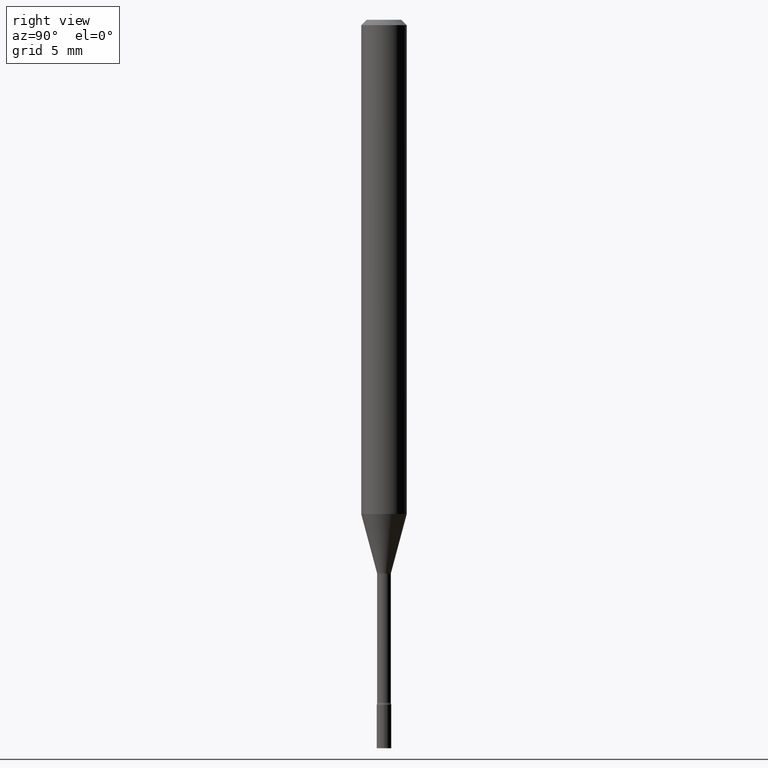
[diagram: clean part render]
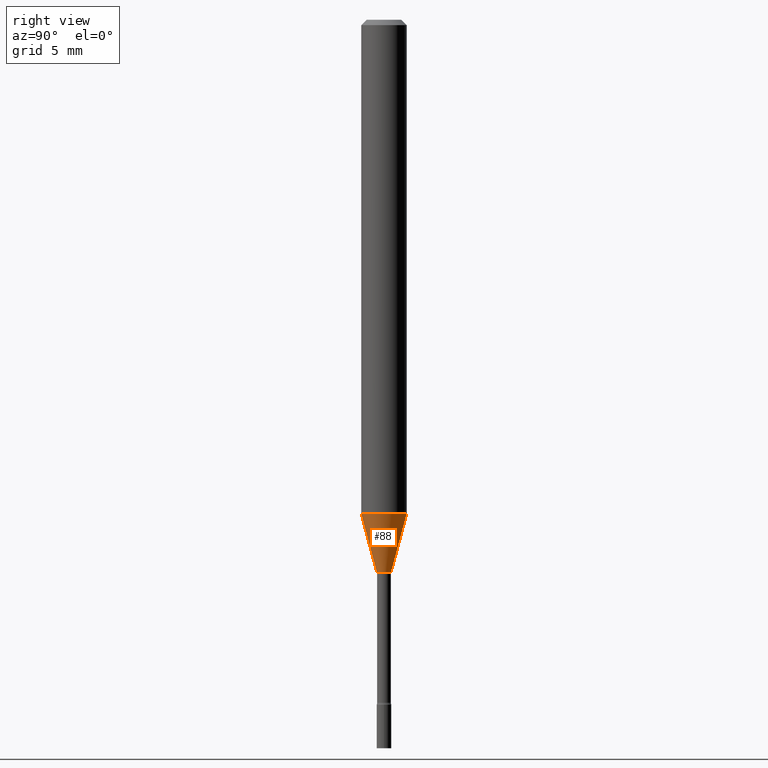
[diagram: same view with one face highlighted and labeled with its STEP entity id]
A machine part, right view. The second image highlights one B-rep face of the part: STEP entity #88.
In plain terms, the highlighted conical surface has half-angle 15 deg.
Its self-contained STEP definition (entity closure, byte-faithful):
#4 = CARTESIAN_POINT ( 'NONE',  ( -1.348487785899112650E-16, -0.01931111260566928736, -1.518092501787273063 ) ) ;
#8 = EDGE_CURVE ( 'NONE', #244, #404, #360, .T. ) ;
#26 = VECTOR ( 'NONE', #489, 39.37007874015748143 ) ;
#30 = ORIENTED_EDGE ( 'NONE', *, *, #63, .F. ) ;
#39 = EDGE_LOOP ( 'NONE', ( #125, #107, #265, #30 ) ) ;
#63 = EDGE_CURVE ( 'NONE', #244, #386, #90, .T. ) ;
#81 = DIRECTION ( 'NONE',  ( 1.839019923739597160E-15, 0.2588190451025245142, 0.9659258262890673130 ) ) ;
#88 = ADVANCED_FACE ( 'NONE', ( #205 ), #308, .T. ) ;
#90 = LINE ( 'NONE', #4, #26 ) ;
#107 = ORIENTED_EDGE ( 'NONE', *, *, #223, .T. ) ;
#111 = CIRCLE ( 'NONE', #289, 0.06250000000000000000 ) ;
#123 = CARTESIAN_POINT ( 'NONE',  ( 1.372137078140355306E-16, 0.01931111260565868473, -1.518092501787273063 ) ) ;
#124 = CARTESIAN_POINT ( 'NONE',  ( -4.364351673553585373E-16, -0.06250000000000476008, -1.356909379709239971 ) ) ;
#125 = ORIENTED_EDGE ( 'NONE', *, *, #8, .T. ) ;
#167 = CARTESIAN_POINT ( 'NONE',  ( -1.348487785899112650E-16, -0.01931111260566928736, -1.518092501787273063 ) ) ;
#203 = DIRECTION ( 'NONE',  ( -2.445495531220379276E-29, 3.491443067071583478E-15, 1.000000000000000000 ) ) ;
#205 = FACE_OUTER_BOUND ( 'NONE', #39, .T. ) ;
#214 = CARTESIAN_POINT ( 'NONE',  ( 3.712488429099941897E-29, -5.300333540538529346E-15, -1.518092501787273063 ) ) ;
#223 = EDGE_CURVE ( 'NONE', #404, #401, #324, .T. ) ;
#244 = VERTEX_POINT ( 'NONE', #167 ) ;
#249 = VECTOR ( 'NONE', #81, 39.37007874015748143 ) ;
#252 = CARTESIAN_POINT ( 'NONE',  ( 3.318315824349964165E-29, -4.737571846430229129E-15, -1.356909379709240193 ) ) ;
#265 = ORIENTED_EDGE ( 'NONE', *, *, #376, .F. ) ;
#289 = AXIS2_PLACEMENT_3D ( 'NONE', #252, #203, #321 ) ;
#301 = DIRECTION ( 'NONE',  ( -6.982962677686265922E-15, -1.000000000000000000, 0.000000000000000000 ) ) ;
#308 = CONICAL_SURFACE ( 'NONE', #409, 0.01931111260566398605, 0.2617993877991497964 ) ;
#321 = DIRECTION ( 'NONE',  ( -6.982962677686265922E-15, -1.000000000000000000, 4.370956789862821150E-15 ) ) ;
#322 = DIRECTION ( 'NONE',  ( -2.445495531220379276E-29, 3.491443067071583478E-15, 1.000000000000000000 ) ) ;
#324 = LINE ( 'NONE', #123, #249 ) ;
#330 = CARTESIAN_POINT ( 'NONE',  ( 4.440892098500955511E-16, 0.06249999999999524686, -1.356909379709240415 ) ) ;
#339 = DIRECTION ( 'NONE',  ( -2.445495531220379276E-29, 3.491443067071583478E-15, 1.000000000000000000 ) ) ;
#360 = CIRCLE ( 'NONE', #512, 0.01931111260566398605 ) ;
#376 = EDGE_CURVE ( 'NONE', #386, #401, #111, .T. ) ;
#383 = CARTESIAN_POINT ( 'NONE',  ( 3.712488429099941897E-29, -5.300333540538529346E-15, -1.518092501787273063 ) ) ;
#386 = VERTEX_POINT ( 'NONE', #124 ) ;
#388 = CARTESIAN_POINT ( 'NONE',  ( 2.906514588320657751E-16, 0.01931111260565868473, -1.518092501787273063 ) ) ;
#401 = VERTEX_POINT ( 'NONE', #330 ) ;
#404 = VERTEX_POINT ( 'NONE', #388 ) ;
#409 = AXIS2_PLACEMENT_3D ( 'NONE', #214, #322, #485 ) ;
#485 = DIRECTION ( 'NONE',  ( -6.982962677686265922E-15, -1.000000000000000000, 0.000000000000000000 ) ) ;
#489 = DIRECTION ( 'NONE',  ( -1.807323732225326984E-15, -0.2588190451025177419, 0.9659258262890690894 ) ) ;
#512 = AXIS2_PLACEMENT_3D ( 'NONE', #383, #339, #301 ) ;